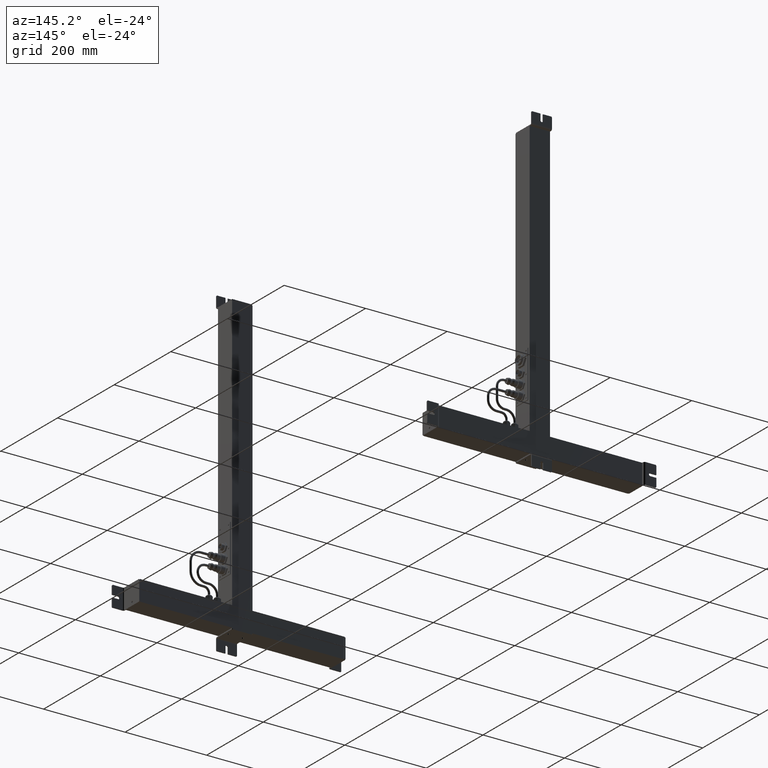
[diagram: clean part render]
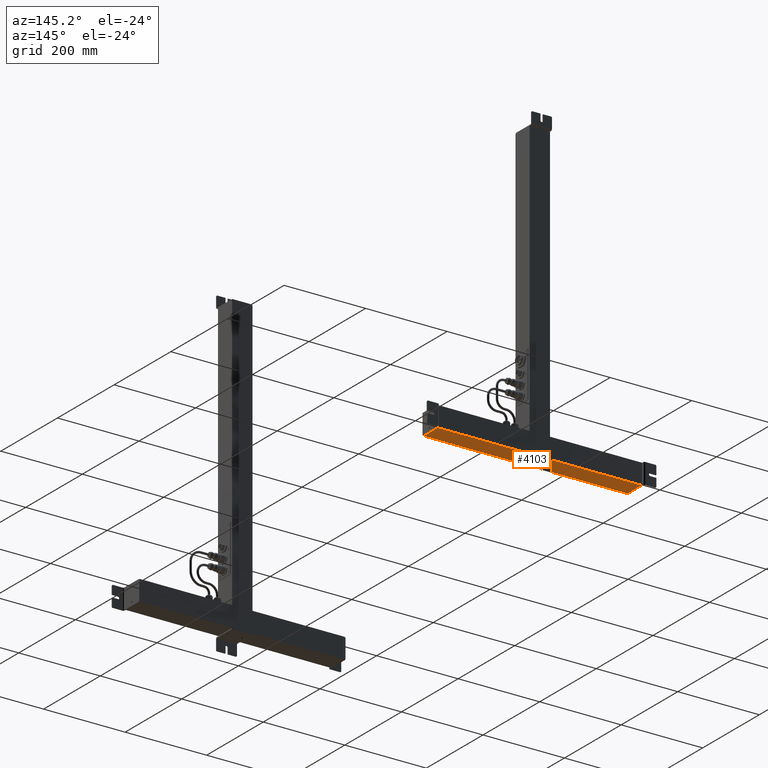
[diagram: same view with one face highlighted and labeled with its STEP entity id]
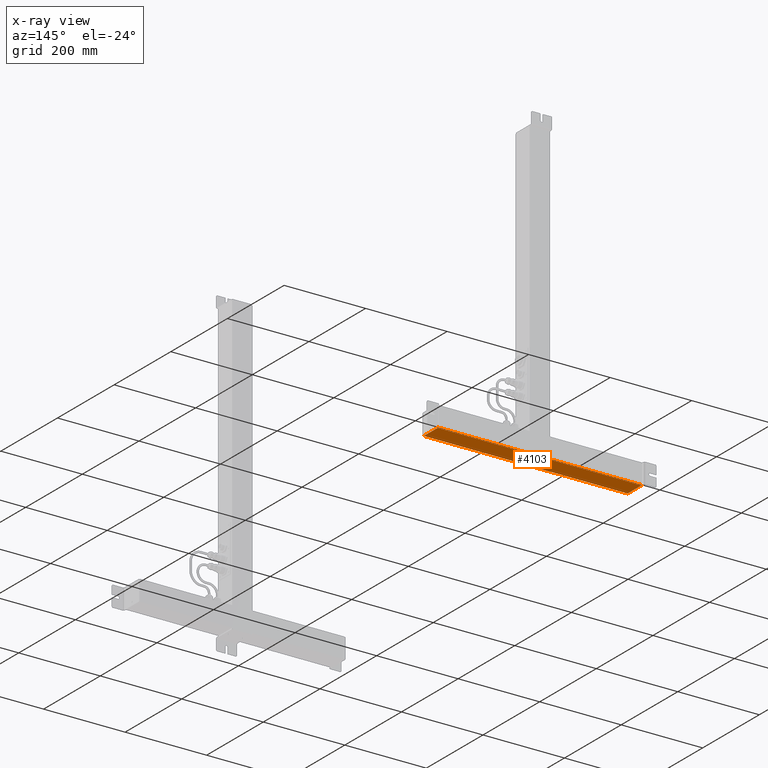
[diagram: x-ray of the same camera — body ghosted, the highlighted face saturated]
A machine part, auxiliary view. The second image highlights one B-rep face of the part: STEP entity #4103.
The next image is the same camera in x-ray: the body ghosted, the highlighted face saturated — about 0% of this face is hidden behind the body in this view.
In plain terms, the highlighted planar face has unit normal (-0, 0, -1).
Its self-contained STEP definition (entity closure, byte-faithful):
#4003=CARTESIAN_POINT('Vertex',(50.,22.5651379695,232.56)) ;
#4006=CARTESIAN_POINT('Axis2P3D Location',(50.,25.,232.56)) ;
#4010=CARTESIAN_POINT('Vertex',(50.,27.4348620305,232.56)) ;
#4030=CARTESIAN_POINT('Axis2P3D Location',(50.,25.,232.56)) ;
#4042=CARTESIAN_POINT('Axis2P3D Location',(50.,2.90282621546E-015,0.)) ;
#4047=CARTESIAN_POINT('Line Origine',(50.,2.90282621546E-015,250.)) ;
#4051=CARTESIAN_POINT('Vertex',(50.,0.,0.)) ;
#4053=CARTESIAN_POINT('Vertex',(50.,0.,500.)) ;
#4056=CARTESIAN_POINT('Line Origine',(50.,25.,0.)) ;
#4060=CARTESIAN_POINT('Vertex',(50.,50.,0.)) ;
#4063=CARTESIAN_POINT('Line Origine',(50.,50.,250.)) ;
#4067=CARTESIAN_POINT('Vertex',(50.,50.,500.)) ;
#4070=CARTESIAN_POINT('Line Origine',(50.,25.,500.)) ;
#4085=CARTESIAN_POINT('Axis2P3D Location',(50.,25.,267.44)) ;
#4089=CARTESIAN_POINT('Vertex',(50.,27.5,267.44)) ;
#4091=CARTESIAN_POINT('Vertex',(50.,22.5,267.44)) ;
#4094=CARTESIAN_POINT('Axis2P3D Location',(50.,25.,267.44)) ;
#4007=DIRECTION('Axis2P3D Direction',(1.,0.,0.)) ;
#4031=DIRECTION('Axis2P3D Direction',(1.,0.,0.)) ;
#4043=DIRECTION('Axis2P3D Direction',(1.,0.,0.)) ;
#4044=DIRECTION('Axis2P3D XDirection',(0.,1.,0.)) ;
#4048=DIRECTION('Vector Direction',(0.,0.,1.)) ;
#4057=DIRECTION('Vector Direction',(0.,1.,0.)) ;
#4064=DIRECTION('Vector Direction',(0.,0.,1.)) ;
#4071=DIRECTION('Vector Direction',(0.,1.,0.)) ;
#4086=DIRECTION('Axis2P3D Direction',(1.,0.,0.)) ;
#4095=DIRECTION('Axis2P3D Direction',(1.,0.,0.)) ;
#4008=AXIS2_PLACEMENT_3D('Circle Axis2P3D',#4006,#4007,$) ;
#4032=AXIS2_PLACEMENT_3D('Circle Axis2P3D',#4030,#4031,$) ;
#4045=AXIS2_PLACEMENT_3D('Plane Axis2P3D',#4042,#4043,#4044) ;
#4087=AXIS2_PLACEMENT_3D('Circle Axis2P3D',#4085,#4086,$) ;
#4096=AXIS2_PLACEMENT_3D('Circle Axis2P3D',#4094,#4095,$) ;
#4076=ORIENTED_EDGE('',*,*,#4055,.F.) ;
#4077=ORIENTED_EDGE('',*,*,#4062,.T.) ;
#4078=ORIENTED_EDGE('',*,*,#4069,.T.) ;
#4079=ORIENTED_EDGE('',*,*,#4074,.F.) ;
#4082=ORIENTED_EDGE('',*,*,#4034,.F.) ;
#4083=ORIENTED_EDGE('',*,*,#4012,.F.) ;
#4100=ORIENTED_EDGE('',*,*,#4093,.F.) ;
#4101=ORIENTED_EDGE('',*,*,#4098,.F.) ;
#4084=FACE_BOUND('',#4081,.T.) ;
#4102=FACE_BOUND('',#4099,.T.) ;
#4049=VECTOR('Line Direction',#4048,1.) ;
#4058=VECTOR('Line Direction',#4057,1.) ;
#4065=VECTOR('Line Direction',#4064,1.) ;
#4072=VECTOR('Line Direction',#4071,1.) ;
#4103=ADVANCED_FACE('PartBody',(#4080,#4084,#4102),#4046,.T.) ;
#4009=CIRCLE('generated circle',#4008,2.4348620305) ;
#4033=CIRCLE('generated circle',#4032,2.4348620305) ;
#4088=CIRCLE('generated circle',#4087,2.50000000001) ;
#4097=CIRCLE('generated circle',#4096,2.50000000001) ;
#4012=EDGE_CURVE('',#4004,#4011,#4009,.T.) ;
#4034=EDGE_CURVE('',#4011,#4004,#4033,.T.) ;
#4055=EDGE_CURVE('',#4052,#4054,#4050,.T.) ;
#4062=EDGE_CURVE('',#4052,#4061,#4059,.T.) ;
#4069=EDGE_CURVE('',#4061,#4068,#4066,.T.) ;
#4074=EDGE_CURVE('',#4054,#4068,#4073,.T.) ;
#4093=EDGE_CURVE('',#4090,#4092,#4088,.T.) ;
#4098=EDGE_CURVE('',#4092,#4090,#4097,.T.) ;
#4075=EDGE_LOOP('',(#4076,#4077,#4078,#4079)) ;
#4081=EDGE_LOOP('',(#4082,#4083)) ;
#4099=EDGE_LOOP('',(#4100,#4101)) ;
#4080=FACE_OUTER_BOUND('',#4075,.T.) ;
#4050=LINE('Line',#4047,#4049) ;
#4059=LINE('Line',#4056,#4058) ;
#4066=LINE('Line',#4063,#4065) ;
#4073=LINE('Line',#4070,#4072) ;
#4046=PLANE('Plane',#4045) ;
#4004=VERTEX_POINT('',#4003) ;
#4011=VERTEX_POINT('',#4010) ;
#4052=VERTEX_POINT('',#4051) ;
#4054=VERTEX_POINT('',#4053) ;
#4061=VERTEX_POINT('',#4060) ;
#4068=VERTEX_POINT('',#4067) ;
#4090=VERTEX_POINT('',#4089) ;
#4092=VERTEX_POINT('',#4091) ;